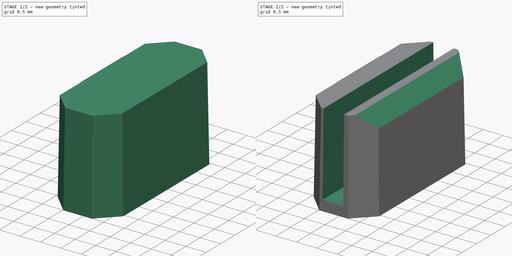
[diagram: build sequence overview — one tinted view per stage of 2, left to right]
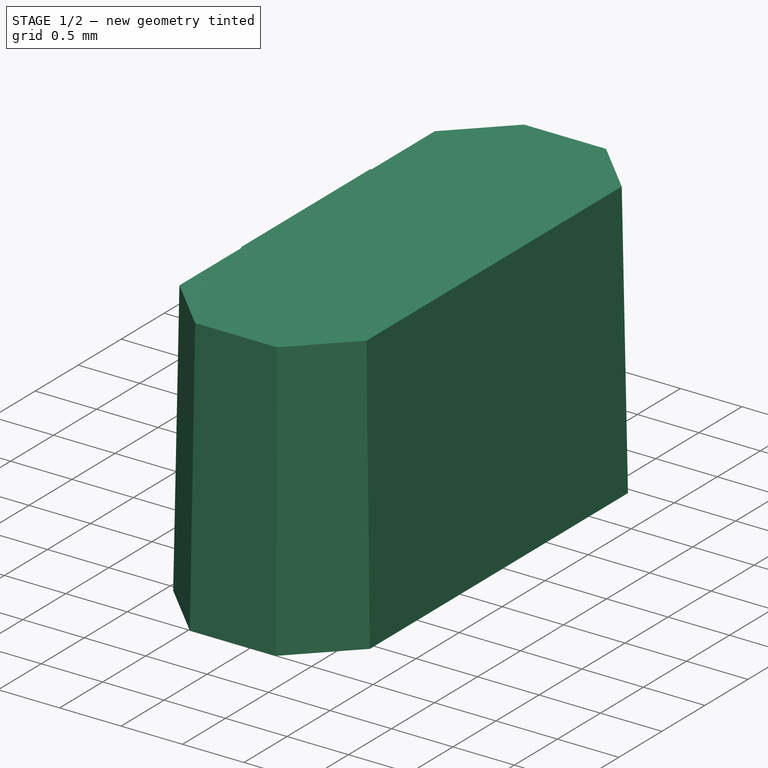
[diagram: stage 1 of 2 — iso view after this stage's code; geometry added in this stage tinted green]
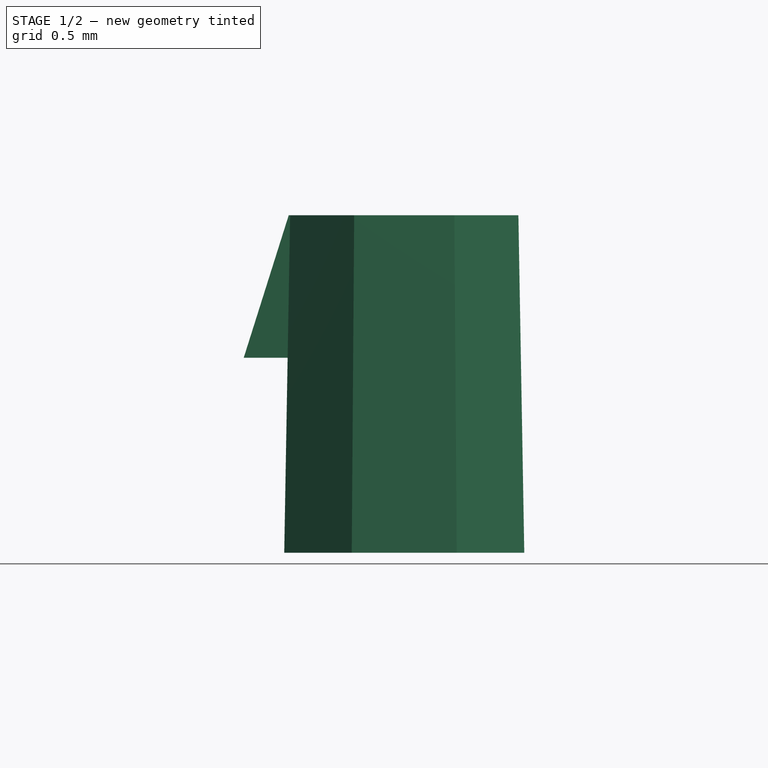
[diagram: stage 1 of 2 — front view after this stage's code; geometry added in this stage tinted green]
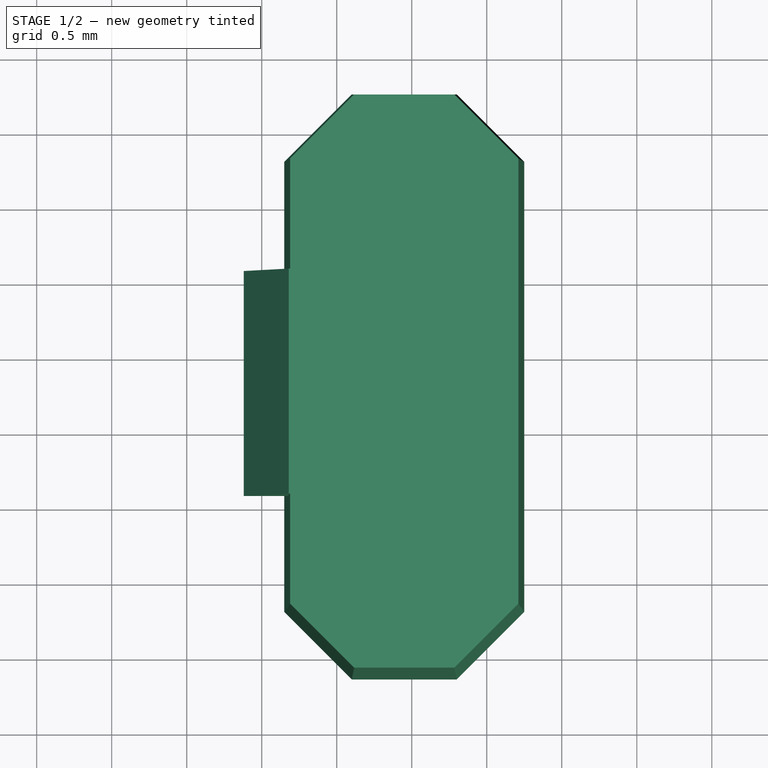
[diagram: stage 1 of 2 — top view after this stage's code; geometry added in this stage tinted green]
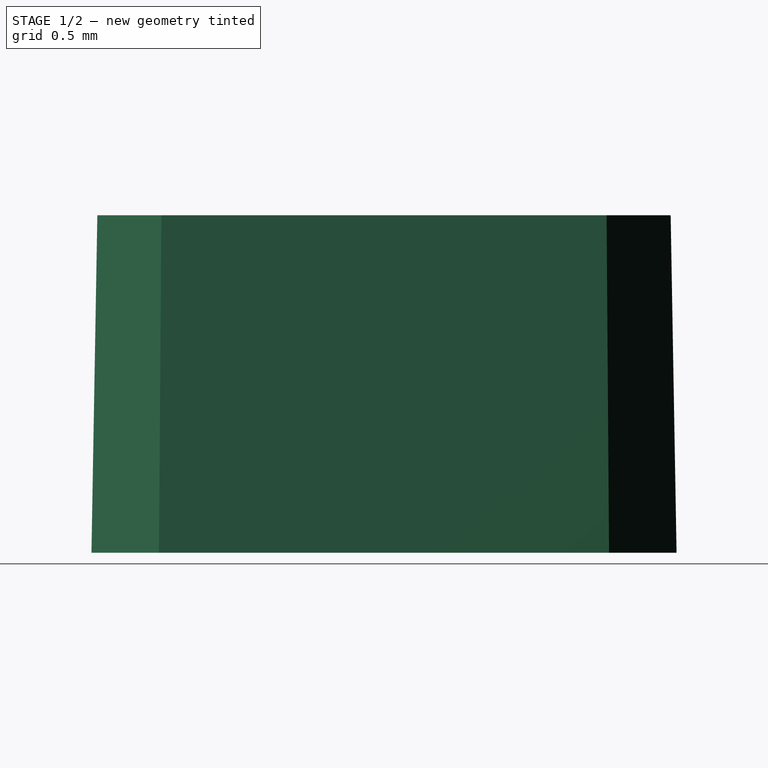
[diagram: stage 1 of 2 — right view after this stage's code; geometry added in this stage tinted green]
FCSTD DOCUMENT  (FreeCAD 0.21R33668 +26 (Git))
Label: PLASTIC-MAGNET-COVER másolata
License: All rights reserved
LicenseURL: http://en.wikipedia.org/wiki/All_rights_reserved
objects: Sketcher::SketchObject×3, Spreadsheet::Sheet×2, PartDesign::Pad×2, PartDesign::Pocket×1, PartDesign::Body×1
note: 10 computed .brp shape members not serialized (recipe doc carries the construction recipe); baked Part::Feature solids carry a one-line shape summary decoded from their .brp

FEATURE [Spreadsheet::Sheet] Spreadsheet  label="Generic"
  cells = A1='Dimension; B1(dimension)==106.6 mm; A2='Corner Radius; B2(cornerRadius)=2; C2='(mm); A3='Screw Diameter; B3(screwDiameter)=2.2; C3='(mm); A4='Screw Diameter Plastic; B4(screwDiameterPlastic)=2.8; C4='(mm); A5='Screw Distance; B5(screwDistance)=101; C5='(mm)
FEATURE [Spreadsheet::Sheet] Spreadsheet001  label="Unibody"
  cells = A1='Height; B1(height)=15; C1='(mm); A5='Rib Length; B5(ribLength)=5; A6='Rib Width; B6(ribWidth)=1.5; A7='Rib Height; B7(ribHeight)=2.8; A8='Rib Dist 1; B8(ribDist1)=19.05; A9='Rib Dist 2; B9(ribDist2)=34.29; C9==1.35 in; A12='PCB Dimensions; B12(pcbDimensions)=100; A13='PCB Thickness; B13(pcbThickness)=1.6; A16='Feet Diameter; B16(feetDiameter)=10; A17='Feet Distance; B17(feetDistance)=85; A18='Feet Depth; B18(feetDepth)=0.5; A19='Feet Thickness; B19(feetThickness)=1
FEATURE [Sketcher::SketchObject] Sketch484
  AttachmentOffset = pos=(0,0,-15.5) rot=(0,0,1;0rad)
  FullyConstrained = true
  MapMode = 5
  Placement = pos=(0,0,-15.5) rot=(0,0,1;0rad)
  Support = -> [XY_Plane136]
  sketch-geometry (11):
    g0: LineSegment StartX=51.8 StartY=-18.13 StartZ=0 EndX=51.1 EndY=-18.13 EndZ=0
    g1: LineSegment StartX=51.1 StartY=-18.13 StartZ=0 EndX=50.65 EndY=-17.68 EndZ=0
    g2: LineSegment StartX=50.65 StartY=-17.68 StartZ=0 EndX=50.65 EndY=-14.68 EndZ=0
    g3: LineSegment StartX=50.65 StartY=-14.68 StartZ=0 EndX=51.1 EndY=-14.23 EndZ=0
    g4: LineSegment StartX=51.1 StartY=-14.23 StartZ=0 EndX=51.8 EndY=-14.23 EndZ=0
    g5: LineSegment StartX=51.8 StartY=-14.23 StartZ=0 EndX=52.25 EndY=-14.68 EndZ=0
    g6: LineSegment StartX=52.25 StartY=-14.68 StartZ=0 EndX=52.25 EndY=-17.68 EndZ=0
    g7: LineSegment StartX=52.25 StartY=-17.68 StartZ=0 EndX=51.8 EndY=-18.13 EndZ=0
    g8: LineSegment StartX=50.65 StartY=-14.68 StartZ=0 EndX=0 EndY=-16.18 EndZ=0
    g9: LineSegment StartX=0 StartY=-16.18 StartZ=0 EndX=50.65 EndY=-17.68 EndZ=0
    g10: LineSegment StartX=50.65 StartY=-17.68 StartZ=0 EndX=52.25 EndY=-17.68 EndZ=0
  constraints (31):
    c: Horizontal(g0)
    c: Coincident(g0,g1)
    c: Coincident(g1,g2)
    c: Vertical(g2)
    c: Coincident(g2,g3)
    c: Coincident(g3,g4)
    c: Horizontal(g4)
    c: Coincident(g4,g5)
    c: Coincident(g5,g6)
    c: Vertical(g6)
    c: Coincident(g6,g7)
    c: Coincident(g2,g8)
    c: Coincident(g8,g9)
    c: Coincident(g9,g1)
    c: PointOnObject(g8,g-2)
    c: DistanceY(g8,g-1) = 16.18
    c: Equal(g9,g8)
    c: Coincident(g0,g7)
    c: Equal(g7,g1)
    c: Equal(g1,g3)
    c: Equal(g3,g5)
    c: Equal(g0,g4)
    c: Equal(g2,g6)
    c: Perpendicular(g1,g3)
    c: Coincident(g10,g1)
    c: Coincident(g10,g6)
    c: Horizontal(g10)
    c: DistanceX(g2,g5) = 1.6
    c: DistanceY(g0,g4) = 3.9
    c: DistanceX(g8,g5) = 52.25
    c: DistanceY(g6,g6) = 3
FEATURE [PartDesign::Pad] Pad397
  Direction = (0,0,1)
  Length = 2.25
  Length2 = 10
  Profile = -> Sketch484
  ReferenceAxis = -> Sketch484 [N_Axis]
  TaperAngle = -1
  Type = 0
FEATURE [Sketcher::SketchObject] Sketch486
  AttachmentOffset = pos=(0,0,16.18) rot=(0,0,1;0rad)
  FullyConstrained = true
  MapMode = 5
  Placement = pos=(0,-16.18,-3.6e-15) rot=(1,0,0;1.5708rad)
  Support = -> [XZ_Plane136]
  sketch-geometry (4):
    g0: LineSegment StartX=50.68 StartY=-13.25 StartZ=0 EndX=50.38 EndY=-14.2 EndZ=0
    g1: LineSegment StartX=50.38 StartY=-14.2 StartZ=0 EndX=51.18 EndY=-14.2 EndZ=0
    g2: LineSegment StartX=50.68 StartY=-13.25 StartZ=0 EndX=51.18 EndY=-13.25 EndZ=0
    g3: LineSegment StartX=51.18 StartY=-13.25 StartZ=0 EndX=51.18 EndY=-14.2 EndZ=0
  constraints (12):
    c: Coincident(g0,g1)
    c: Horizontal(g1)
    c: Coincident(g0,g2)
    c: Horizontal(g2)
    c: Coincident(g2,g3)
    c: Coincident(g3,g1)
    c: Vertical(g3)
    c: DistanceY(g0,g-1) = 13.25
    c: DistanceX(g-1,g0) = 50.68
    c: DistanceX(g2,g2) = 0.5
    c: DistanceY(g0,g0) = 0.95
    c: DistanceX(g0,g0) = 0.3
FEATURE [PartDesign::Pad] Pad398
  BaseFeature = -> Pad397
  Direction = (0,-1,-2e-16)
  Length = 1.5
  Length2 = 10
  Midplane = true
  Profile = -> Sketch486
  ReferenceAxis = -> Sketch486 [N_Axis]
  Refine = true
  Type = 0
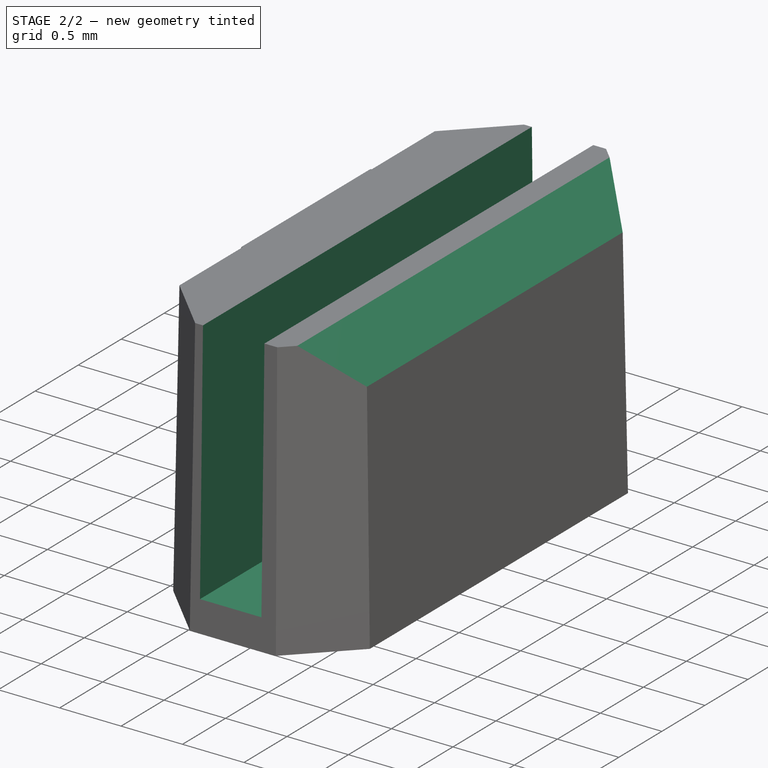
[diagram: stage 2 of 2 — iso view after this stage's code; geometry added in this stage tinted green]
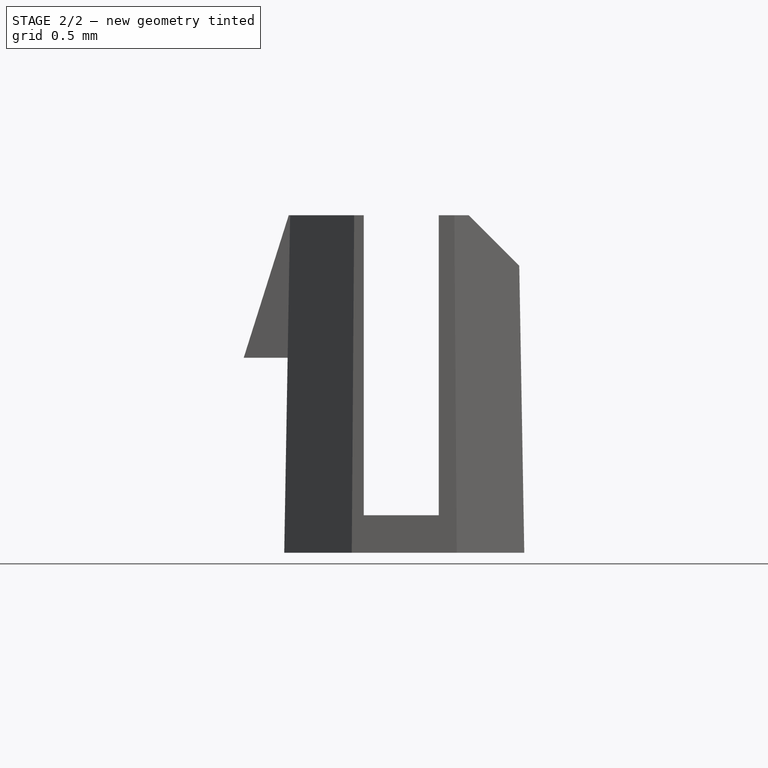
[diagram: stage 2 of 2 — front view after this stage's code; geometry added in this stage tinted green]
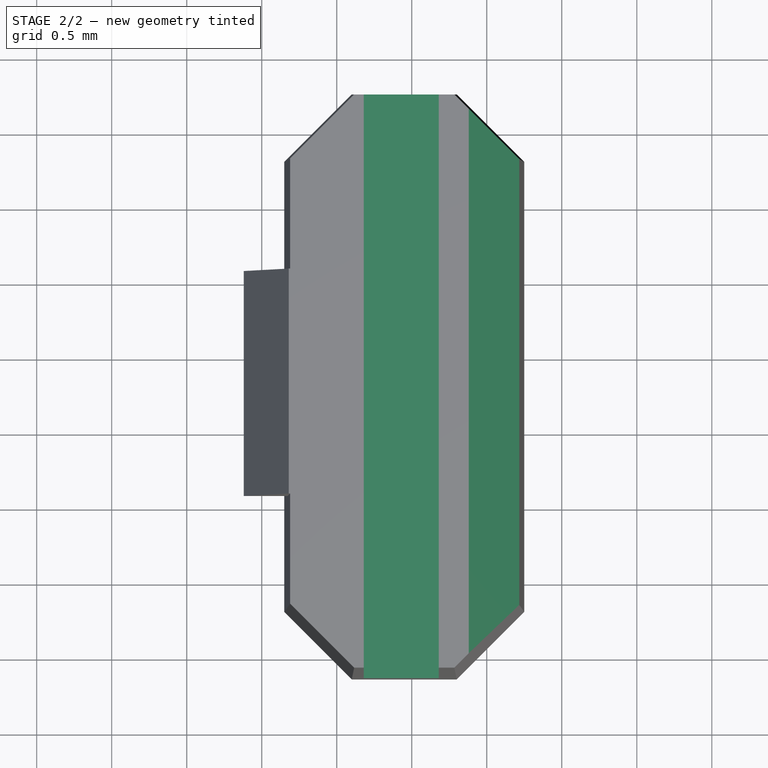
[diagram: stage 2 of 2 — top view after this stage's code; geometry added in this stage tinted green]
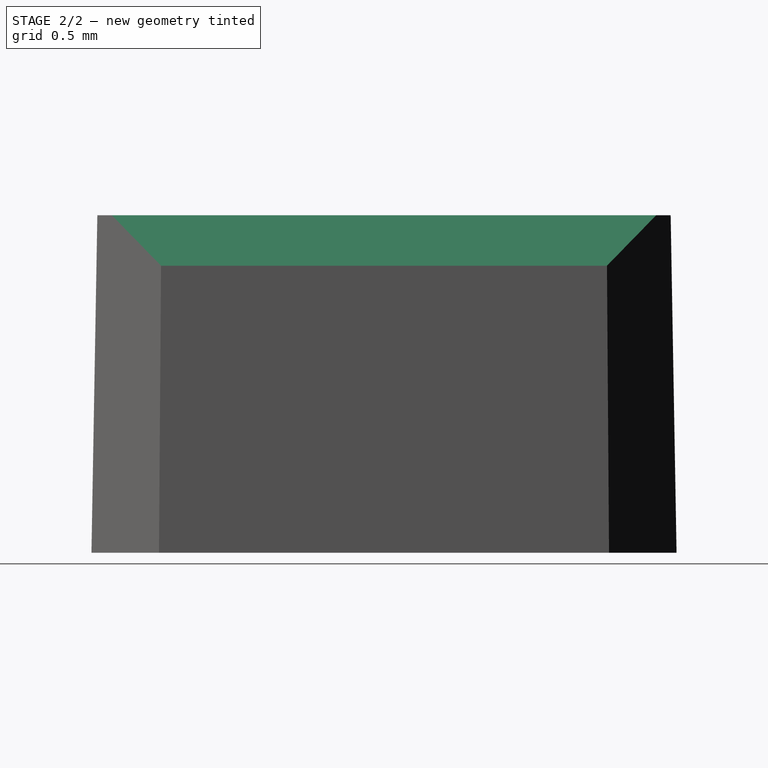
[diagram: stage 2 of 2 — right view after this stage's code; geometry added in this stage tinted green]
FEATURE [Sketcher::SketchObject] Sketch487
  AttachmentOffset = pos=(0,0,16.18) rot=(0,0,1;0rad)
  FullyConstrained = true
  MapMode = 5
  Placement = pos=(0,-16.18,-3.6e-15) rot=(1,0,0;1.5708rad)
  Support = -> [XZ_Plane136]
  sketch-geometry (9):
    g0: LineSegment StartX=50.68 StartY=-13.25 StartZ=0 EndX=51.18 EndY=-13.25 EndZ=0
    g1: LineSegment StartX=51.18 StartY=-13.25 StartZ=0 EndX=51.68 EndY=-13.25 EndZ=0
    g2: LineSegment StartX=51.68 StartY=-13.25 StartZ=0 EndX=51.68 EndY=-15.25 EndZ=0
    g3: LineSegment StartX=51.68 StartY=-15.25 StartZ=0 EndX=51.18 EndY=-15.25 EndZ=0
    g4: LineSegment StartX=51.18 StartY=-15.25 StartZ=0 EndX=51.18 EndY=-13.25 EndZ=0
    g5: LineSegment StartX=51.68 StartY=-13.25 StartZ=0 EndX=51.88 EndY=-13.25 EndZ=0
    g6: LineSegment StartX=51.88 StartY=-13.25 StartZ=0 EndX=52.38 EndY=-13.25 EndZ=0
    g7: LineSegment StartX=52.38 StartY=-13.25 StartZ=0 EndX=52.38 EndY=-13.75 EndZ=0
    g8: LineSegment StartX=52.38 StartY=-13.75 StartZ=0 EndX=51.88 EndY=-13.25 EndZ=0
  constraints (26):
    c: Horizontal(g0)
    c: DistanceY(g0,g-1) = 13.25
    c: DistanceX(g-1,g0) = 50.68
    c: DistanceX(g0,g0) = 0.5
    c: Coincident(g1,g2)
    c: Coincident(g2,g3)
    c: Coincident(g3,g4)
    c: Coincident(g4,g1)
    c: Horizontal(g1)
    c: Horizontal(g3)
    c: Vertical(g2)
    c: Vertical(g4)
    c: Coincident(g1,g0)
    c: DistanceY(g4,g4) = 2
    c: DistanceX(g1,g1) = 0.5
    c: Coincident(g5,g1)
    c: Horizontal(g5)
    c: DistanceX(g5,g5) = 0.2
    c: Coincident(g5,g6)
    c: Horizontal(g6)
    c: Coincident(g6,g7)
    c: Coincident(g7,g8)
    c: Coincident(g8,g6)
    c: Vertical(g7)
    c: Equal(g7,g6)
    c: DistanceX(g6,g6) = 0.5
FEATURE [PartDesign::Pocket] Pocket033
  BaseFeature = -> Pad398
  Direction = (0,1,2e-16)
  Length = 5
  Length2 = 5
  Midplane = true
  Profile = -> Sketch487
  ReferenceAxis = -> Sketch487 [N_Axis]
  Type = 1
FEATURE [PartDesign::Body] Body110  label="PLASTIC-MAGNET-CLIP"
  Group = -> [Sketch484,Pad397,Sketch486,Pad398,Sketch487,Pocket033]
  Origin = -> Origin136
  Tip = -> Pocket033
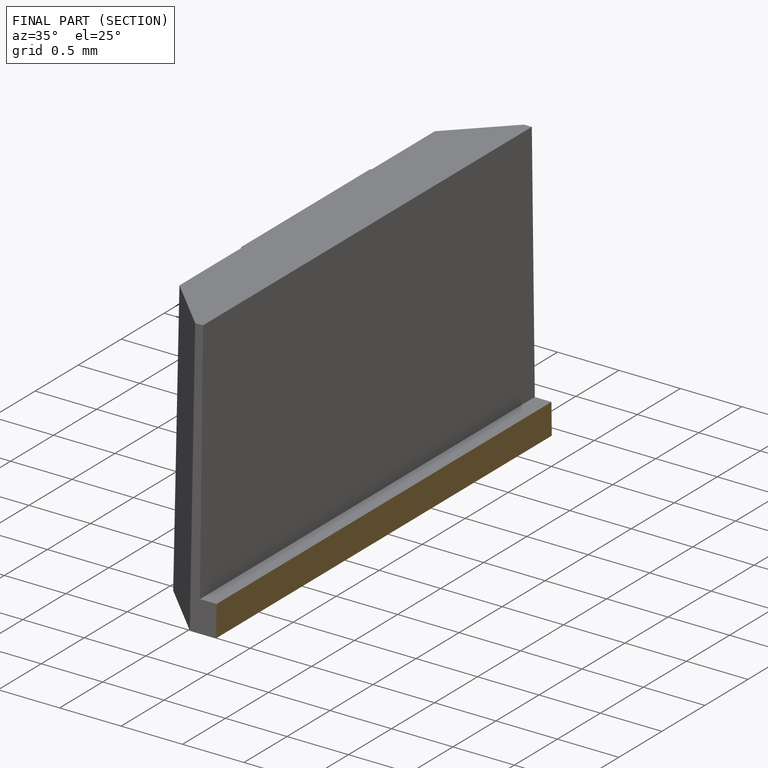
[diagram: finished part — half-section view (interior)]
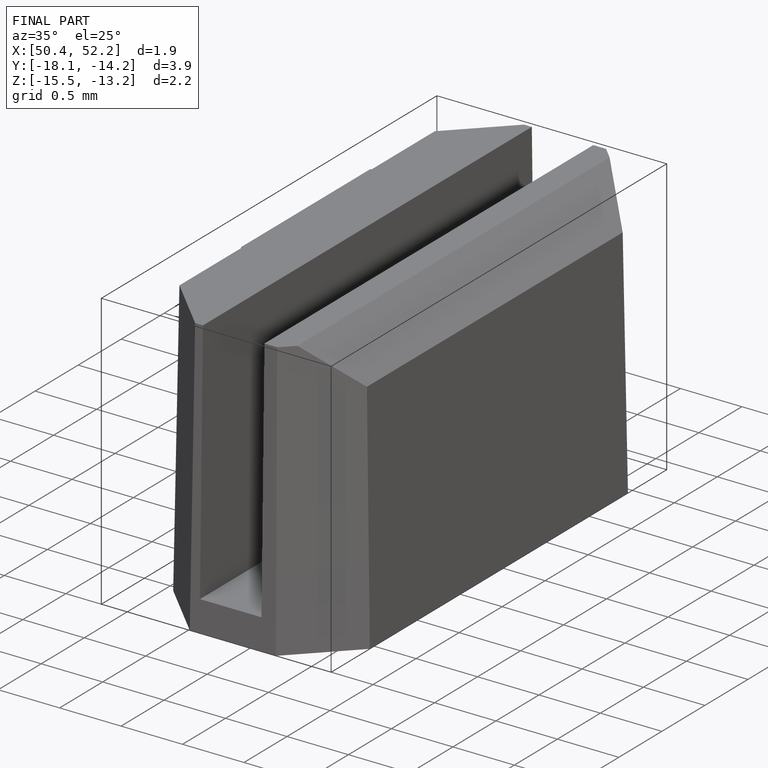
[diagram: finished part — iso view with bounding-box wireframe]
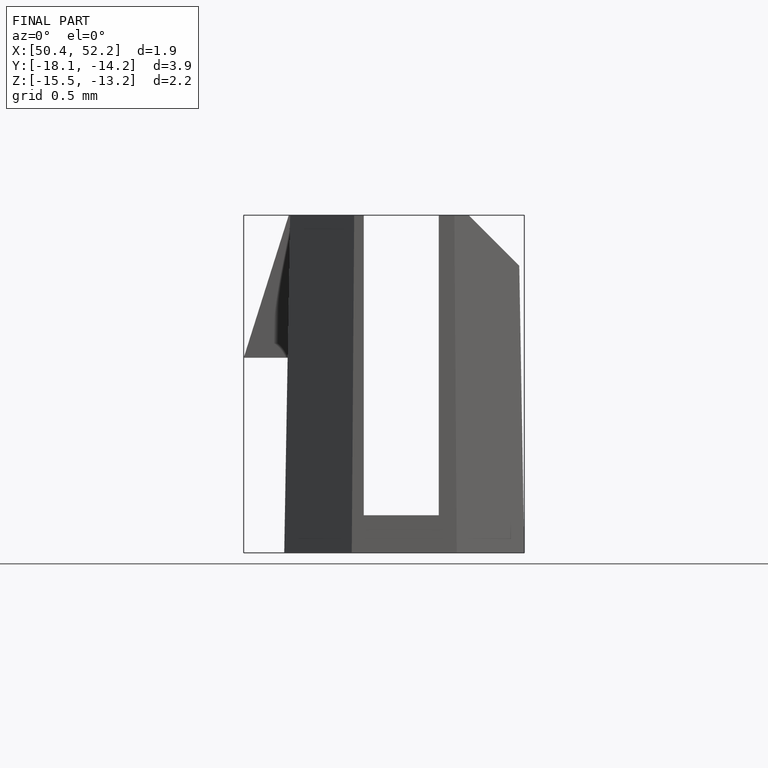
[diagram: finished part — front view with bounding-box wireframe]
